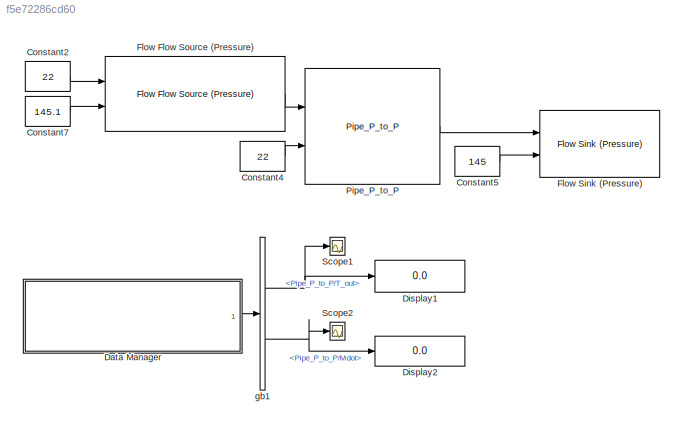
MODEL slx_f5e72286cd60
KIND model
BLOCK [Constant] Constant2
  Value = 22
BLOCK [Constant] Constant4
  Value = 22
BLOCK [Constant] Constant5
  Value = 145
BLOCK [Constant] Constant7
  Value = 145.1
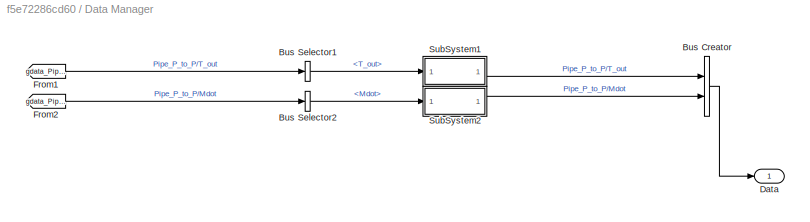
BLOCK [SubSystem] Data Manager
  AncestorBlock = DAEMOT_Lib/Support Functions/Data Manager
  OpenFcn = data_manager
  Ports = [0, 1]
  RequestExecContextInheritance = off
  UserDataPersistent = on
BLOCK [BusCreator] Data Manager/Bus Creator
  DisplayOption = bar
  Inputs = 2
  Ports = [2, 1]
BLOCK [BusSelector] Data Manager/Bus Selector1
  OutputSignals = T_out
  Ports = [1, 1]
BLOCK [BusSelector] Data Manager/Bus Selector2
  OutputSignals = Mdot
  Ports = [1, 1]
BLOCK [Outport] Data Manager/Data
  IconDisplay = Port number
BLOCK [From] Data Manager/From1
  GotoTag = gdata_Pipe_p_to_p_testPipe_P_to_Pdata_sink1
  TagVisibility = global
  UserDataPersistent = on
BLOCK [From] Data Manager/From2
  GotoTag = gdata_Pipe_p_to_p_testPipe_P_to_Pdata_sink1
  TagVisibility = global
  UserDataPersistent = on
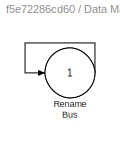
BLOCK [SubSystem] Data Manager/SubSystem1
  Ports = [1, 1]
  RequestExecContextInheritance = off
BLOCK [Outport] Data Manager/SubSystem1/Bus
  IconDisplay = Port number
BLOCK [Inport] Data Manager/SubSystem1/Rename
  IconDisplay = Port number
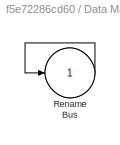
BLOCK [SubSystem] Data Manager/SubSystem2
  Ports = [1, 1]
  RequestExecContextInheritance = off
BLOCK [Outport] Data Manager/SubSystem2/Bus
  IconDisplay = Port number
BLOCK [Inport] Data Manager/SubSystem2/Rename
  IconDisplay = Port number
BLOCK [Display] Display1
  Decimation = 1
  Ports = [1]
BLOCK [Display] Display2
  Decimation = 1
  Ports = [1]
BLOCK [Reference] Flow Flow Source (Pressure)  REF=DAEMOT_Lib/Components/Flow Flow Source (Pressure)
  M = 0
  M_ext = on
  P = 0
  P_ext = on
  Ports = [2, 1]
  SourceBlock = DAEMOT_Lib/Components/Flow Flow Source (Pressure)
  SourceType = Flow Source (Pressure)
  T = 0
  T_ext = on
BLOCK [Reference] Flow Sink (Pressure)  REF=DAEMOT_Lib/Components/Flow Sink (Pressure)
  M = 0
  M_ext = on
  P = 0
  P_ext = on
  Ports = [2]
  SourceBlock = DAEMOT_Lib/Components/Flow Sink (Pressure)
  SourceType = Flow Sink (Pressure)
  T = 0
  T_ext = on
BLOCK [Reference] Pipe_P_to_P  REF=DAEMOT_Lib/Components/Pipe_P_to_P
  D = 13*1e-3
  E = 0.01*1e-3
  H = 0
  KL = 0
  L = 0.2
  Ports = [2, 1]
  SourceBlock = DAEMOT_Lib/Components/Pipe_P_to_P
  SourceType = Pipe (P to P)
  T_init = 22
  Tamb_init = 22
  e_rough = 0.01*1e-3
  f = 0.05
  fld = Water
  t = 0.0015
  v = 0.4
BLOCK [Scope] Scope1
  Floating = off
  LimitDataPoints = off
  NumInputPorts = 1
  Ports = [1]
  ShowLegends = off
BLOCK [Scope] Scope2
  Floating = off
  LimitDataPoints = off
  NumInputPorts = 1
  Ports = [1]
  SaveName = ScopeData1
  ShowLegends = off
BLOCK [BusSelector] gb1
  OutputSignals = Pipe_P_to_P/T_out,Pipe_P_to_P/Mdot
  Ports = [1, 2]
LINE Constant2:1 -> Flow Flow Source (Pressure):1
LINE Constant4:1 -> Pipe_P_to_P:2
LINE Constant5:1 -> Flow Sink (Pressure):2
LINE Constant7:1 -> Flow Flow Source (Pressure):2
LINE Data Manager:1 -> gb1:1
LINE Flow Flow Source (Pressure):1 -> Pipe_P_to_P:1
LINE Pipe_P_to_P:1 -> Flow Sink (Pressure):1
NET gb1:1 -> Display1:1, Scope1:1
NET gb1:2 -> Display2:1, Scope2:1
note: NET lines group one-source signal fan-out (src -> all destinations, sorted); 1:1 wires keep LINE
